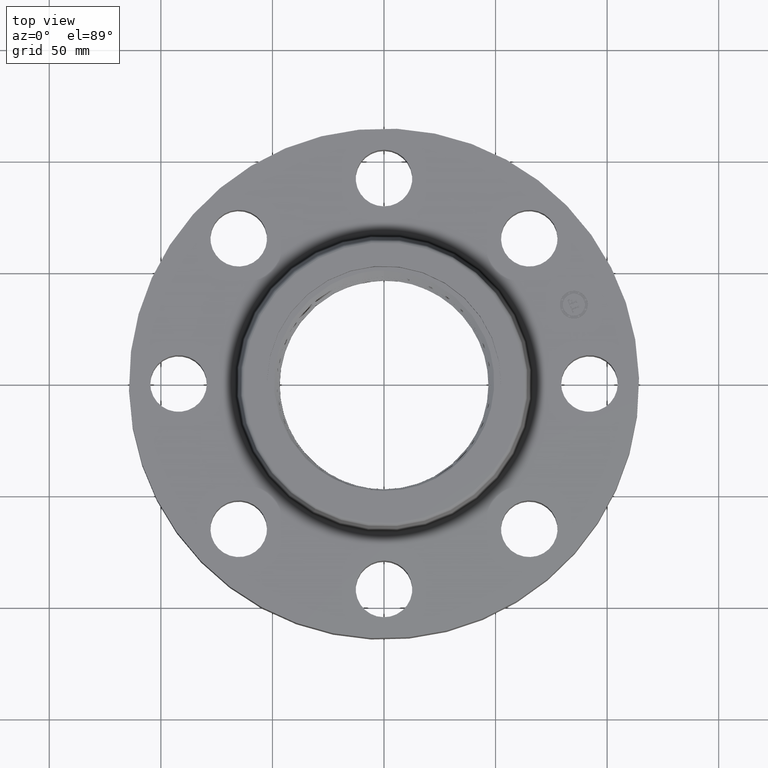
[diagram: clean part render]
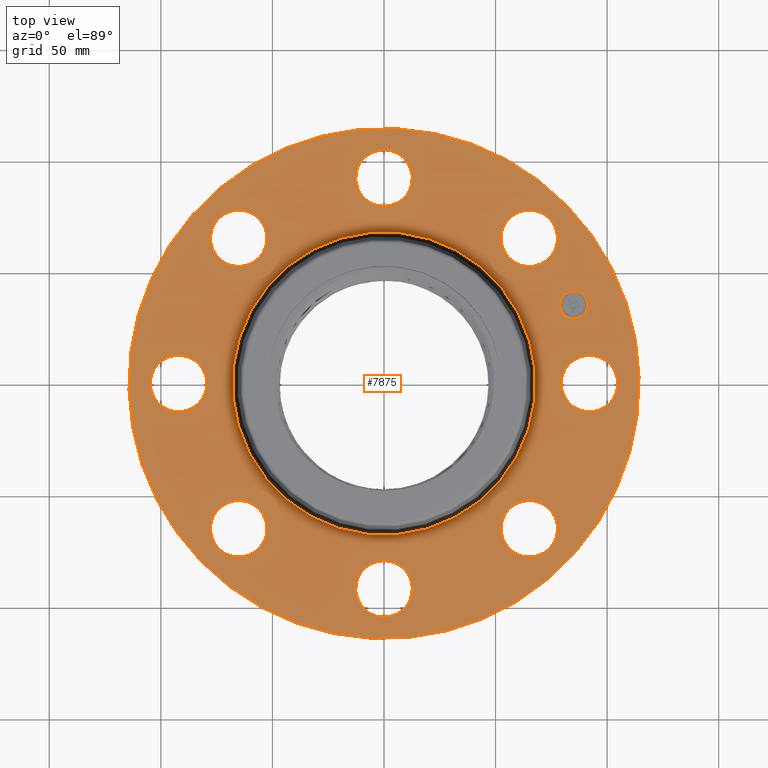
[diagram: same view with one face highlighted and labeled with its STEP entity id]
A machine part, top view. The second image highlights one B-rep face of the part: STEP entity #7875.
In plain terms, the highlighted planar face has unit normal (0, 0, -1).
Its self-contained STEP definition (entity closure, byte-faithful):
#401=AXIS2_PLACEMENT_3D('Circle Axis2P3D',#399,#400,$) ;
#418=AXIS2_PLACEMENT_3D('Circle Axis2P3D',#416,#417,$) ;
#451=AXIS2_PLACEMENT_3D('Circle Axis2P3D',#449,#450,$) ;
#475=AXIS2_PLACEMENT_3D('Circle Axis2P3D',#473,#474,$) ;
#492=AXIS2_PLACEMENT_3D('Circle Axis2P3D',#490,#491,$) ;
#527=AXIS2_PLACEMENT_3D('Circle Axis2P3D',#525,#526,$) ;
#836=AXIS2_PLACEMENT_3D('Circle Axis2P3D',#834,#835,$) ;
#848=AXIS2_PLACEMENT_3D('Circle Axis2P3D',#846,#847,$) ;
#879=AXIS2_PLACEMENT_3D('Circle Axis2P3D',#877,#878,$) ;
#891=AXIS2_PLACEMENT_3D('Circle Axis2P3D',#889,#890,$) ;
#922=AXIS2_PLACEMENT_3D('Circle Axis2P3D',#920,#921,$) ;
#934=AXIS2_PLACEMENT_3D('Circle Axis2P3D',#932,#933,$) ;
#965=AXIS2_PLACEMENT_3D('Circle Axis2P3D',#963,#964,$) ;
#977=AXIS2_PLACEMENT_3D('Circle Axis2P3D',#975,#976,$) ;
#1008=AXIS2_PLACEMENT_3D('Circle Axis2P3D',#1006,#1007,$) ;
#1020=AXIS2_PLACEMENT_3D('Circle Axis2P3D',#1018,#1019,$) ;
#1051=AXIS2_PLACEMENT_3D('Circle Axis2P3D',#1049,#1050,$) ;
#1063=AXIS2_PLACEMENT_3D('Circle Axis2P3D',#1061,#1062,$) ;
#1094=AXIS2_PLACEMENT_3D('Circle Axis2P3D',#1092,#1093,$) ;
#1106=AXIS2_PLACEMENT_3D('Circle Axis2P3D',#1104,#1105,$) ;
#7815=AXIS2_PLACEMENT_3D('Plane Axis2P3D',#7812,#7813,#7814) ;
#7859=AXIS2_PLACEMENT_3D('Circle Axis2P3D',#7857,#7858,$) ;
#7868=AXIS2_PLACEMENT_3D('Circle Axis2P3D',#7866,#7867,$) ;
#382=CARTESIAN_POINT('Vertex',(3.18620871907,0.239712769303,1.38000000001)) ;
#396=CARTESIAN_POINT('Vertex',(4.06379128096,-0.239712769303,1.38000000001)) ;
#399=CARTESIAN_POINT('Axis2P3D Location',(3.62500000001,0.,1.38000000001)) ;
#416=CARTESIAN_POINT('Axis2P3D Location',(3.62500000001,0.,1.38000000001)) ;
#446=CARTESIAN_POINT('Vertex',(-2.15741492373,-3.94912152852,1.38000000001)) ;
#449=CARTESIAN_POINT('Axis2P3D Location',(0.,0.,1.38000000001)) ;
#453=CARTESIAN_POINT('Vertex',(2.15741492373,3.94912152852,1.38000000001)) ;
#473=CARTESIAN_POINT('Axis2P3D Location',(0.,0.,1.38000000001)) ;
#490=CARTESIAN_POINT('Axis2P3D Location',(0.,0.,1.38000000001)) ;
#494=CARTESIAN_POINT('Vertex',(1.2826291864,2.34783697721,1.38000000001)) ;
#496=CARTESIAN_POINT('Vertex',(-1.2826291864,-2.34783697721,1.38000000001)) ;
#525=CARTESIAN_POINT('Axis2P3D Location',(0.,0.,1.38000000001)) ;
#824=CARTESIAN_POINT('Vertex',(-2.42249231624,2.08348726682,1.38000000001)) ;
#831=CARTESIAN_POINT('Vertex',(-2.70403184738,3.04303689681,1.38000000001)) ;
#834=CARTESIAN_POINT('Axis2P3D Location',(-2.56326208181,2.56326208181,1.38000000001)) ;
#846=CARTESIAN_POINT('Axis2P3D Location',(-2.56326208181,2.56326208181,1.38000000001)) ;
#867=CARTESIAN_POINT('Vertex',(0.239712769303,-3.18620871907,1.38000000001)) ;
#874=CARTESIAN_POINT('Vertex',(-0.239712769303,-4.06379128096,1.38000000001)) ;
#877=CARTESIAN_POINT('Axis2P3D Location',(-3.37515236756E-016,-3.62500000001,1.38000000001)) ;
#889=CARTESIAN_POINT('Axis2P3D Location',(-3.37515236756E-016,-3.62500000001,1.38000000001)) ;
#910=CARTESIAN_POINT('Vertex',(-0.239712769303,3.18620871907,1.38000000001)) ;
#917=CARTESIAN_POINT('Vertex',(0.239712769303,4.06379128096,1.38000000001)) ;
#920=CARTESIAN_POINT('Axis2P3D Location',(-6.65901697039E-016,3.62500000001,1.38000000001)) ;
#932=CARTESIAN_POINT('Axis2P3D Location',(-6.65901697039E-016,3.62500000001,1.38000000001)) ;
#953=CARTESIAN_POINT('Vertex',(-2.08348726682,-2.42249231624,1.38000000001)) ;
#960=CARTESIAN_POINT('Vertex',(-3.04303689681,-2.70403184738,1.38000000001)) ;
#963=CARTESIAN_POINT('Axis2P3D Location',(-2.56326208181,-2.56326208181,1.38000000001)) ;
#975=CARTESIAN_POINT('Axis2P3D Location',(-2.56326208181,-2.56326208181,1.38000000001)) ;
#996=CARTESIAN_POINT('Vertex',(2.08348726682,2.42249231624,1.38000000001)) ;
#1003=CARTESIAN_POINT('Vertex',(3.04303689681,2.70403184738,1.38000000001)) ;
#1006=CARTESIAN_POINT('Axis2P3D Location',(2.56326208181,2.56326208181,1.38000000001)) ;
#1018=CARTESIAN_POINT('Axis2P3D Location',(2.56326208181,2.56326208181,1.38000000001)) ;
#1039=CARTESIAN_POINT('Vertex',(-3.18620871907,-0.239712769303,1.38000000001)) ;
#1046=CARTESIAN_POINT('Vertex',(-4.06379128096,0.239712769303,1.38000000001)) ;
#1049=CARTESIAN_POINT('Axis2P3D Location',(-3.62500000001,-4.43934464693E-016,1.38000000001)) ;
#1061=CARTESIAN_POINT('Axis2P3D Location',(-3.62500000001,-4.43934464693E-016,1.38000000001)) ;
#1082=CARTESIAN_POINT('Vertex',(2.42249231624,-2.08348726682,1.38000000001)) ;
#1089=CARTESIAN_POINT('Vertex',(2.70403184738,-3.04303689681,1.38000000001)) ;
#1092=CARTESIAN_POINT('Axis2P3D Location',(2.56326208181,-2.56326208181,1.38000000001)) ;
#1104=CARTESIAN_POINT('Axis2P3D Location',(2.56326208181,-2.56326208181,1.38000000001)) ;
#7812=CARTESIAN_POINT('Axis2P3D Location',(0.,4.50000000002,1.38000000001)) ;
#7857=CARTESIAN_POINT('Axis2P3D Location',(3.34906330537,1.38722744233,1.38000000001)) ;
#7861=CARTESIAN_POINT('Vertex',(3.25434915586,1.61588762663,1.38000000001)) ;
#7863=CARTESIAN_POINT('Vertex',(3.44377745488,1.15856725803,1.38000000001)) ;
#7866=CARTESIAN_POINT('Axis2P3D Location',(3.34906330537,1.38722744233,1.38000000001)) ;
#400=DIRECTION('Axis2P3D Direction',(0.,-0.,-0.0393700787402)) ;
#417=DIRECTION('Axis2P3D Direction',(0.,-0.,-0.0393700787402)) ;
#450=DIRECTION('Axis2P3D Direction',(0.,0.,-0.0393700787402)) ;
#474=DIRECTION('Axis2P3D Direction',(0.,0.,-0.0393700787402)) ;
#491=DIRECTION('Axis2P3D Direction',(0.,0.,-0.0393700787402)) ;
#526=DIRECTION('Axis2P3D Direction',(0.,0.,-0.0393700787402)) ;
#835=DIRECTION('Axis2P3D Direction',(0.,0.,-0.0393700787402)) ;
#847=DIRECTION('Axis2P3D Direction',(0.,0.,-0.0393700787402)) ;
#878=DIRECTION('Axis2P3D Direction',(0.,-0.,-0.0393700787402)) ;
#890=DIRECTION('Axis2P3D Direction',(0.,-0.,-0.0393700787402)) ;
#921=DIRECTION('Axis2P3D Direction',(0.,0.,-0.0393700787402)) ;
#933=DIRECTION('Axis2P3D Direction',(0.,0.,-0.0393700787402)) ;
#964=DIRECTION('Axis2P3D Direction',(-0.,0.,-0.0393700787402)) ;
#976=DIRECTION('Axis2P3D Direction',(-0.,0.,-0.0393700787402)) ;
#1007=DIRECTION('Axis2P3D Direction',(0.,0.,-0.0393700787402)) ;
#1019=DIRECTION('Axis2P3D Direction',(0.,0.,-0.0393700787402)) ;
#1050=DIRECTION('Axis2P3D Direction',(-0.,0.,-0.0393700787402)) ;
#1062=DIRECTION('Axis2P3D Direction',(-0.,0.,-0.0393700787402)) ;
#1093=DIRECTION('Axis2P3D Direction',(0.,-0.,-0.0393700787402)) ;
#1105=DIRECTION('Axis2P3D Direction',(0.,-0.,-0.0393700787402)) ;
#7813=DIRECTION('Axis2P3D Direction',(0.,0.,-0.0393700787402)) ;
#7814=DIRECTION('Axis2P3D XDirection',(0.0393700787402,0.,0.)) ;
#7858=DIRECTION('Axis2P3D Direction',(0.,0.,-0.0393700787402)) ;
#7867=DIRECTION('Axis2P3D Direction',(0.,0.,-0.0393700787402)) ;
#7818=ORIENTED_EDGE('',*,*,#477,.F.) ;
#7819=ORIENTED_EDGE('',*,*,#455,.F.) ;
#7822=ORIENTED_EDGE('',*,*,#403,.T.) ;
#7823=ORIENTED_EDGE('',*,*,#420,.T.) ;
#7826=ORIENTED_EDGE('',*,*,#529,.T.) ;
#7827=ORIENTED_EDGE('',*,*,#498,.T.) ;
#7830=ORIENTED_EDGE('',*,*,#1108,.T.) ;
#7831=ORIENTED_EDGE('',*,*,#1096,.T.) ;
#7834=ORIENTED_EDGE('',*,*,#893,.T.) ;
#7835=ORIENTED_EDGE('',*,*,#881,.T.) ;
#7838=ORIENTED_EDGE('',*,*,#979,.T.) ;
#7839=ORIENTED_EDGE('',*,*,#967,.T.) ;
#7842=ORIENTED_EDGE('',*,*,#1065,.T.) ;
#7843=ORIENTED_EDGE('',*,*,#1053,.T.) ;
#7846=ORIENTED_EDGE('',*,*,#850,.T.) ;
#7847=ORIENTED_EDGE('',*,*,#838,.T.) ;
#7850=ORIENTED_EDGE('',*,*,#936,.T.) ;
#7851=ORIENTED_EDGE('',*,*,#924,.T.) ;
#7854=ORIENTED_EDGE('',*,*,#1022,.T.) ;
#7855=ORIENTED_EDGE('',*,*,#1010,.T.) ;
#7872=ORIENTED_EDGE('',*,*,#7865,.T.) ;
#7873=ORIENTED_EDGE('',*,*,#7870,.T.) ;
#7824=FACE_BOUND('',#7821,.T.) ;
#7828=FACE_BOUND('',#7825,.T.) ;
#7832=FACE_BOUND('',#7829,.T.) ;
#7836=FACE_BOUND('',#7833,.T.) ;
#7840=FACE_BOUND('',#7837,.T.) ;
#7844=FACE_BOUND('',#7841,.T.) ;
#7848=FACE_BOUND('',#7845,.T.) ;
#7852=FACE_BOUND('',#7849,.T.) ;
#7856=FACE_BOUND('',#7853,.T.) ;
#7874=FACE_BOUND('',#7871,.T.) ;
#7875=ADVANCED_FACE('PartBody',(#7820,#7824,#7828,#7832,#7836,#7840,#7844,#7848,#7852,#7856,#7874),#7816,.F.) ;
#402=CIRCLE('generated circle',#401,0.500000000002) ;
#419=CIRCLE('generated circle',#418,0.500000000002) ;
#452=CIRCLE('generated circle',#451,4.50000000002) ;
#476=CIRCLE('generated circle',#475,4.50000000002) ;
#493=CIRCLE('generated circle',#492,2.67534597788) ;
#528=CIRCLE('generated circle',#527,2.67534597788) ;
#837=CIRCLE('generated circle',#836,0.500000000002) ;
#849=CIRCLE('generated circle',#848,0.500000000002) ;
#880=CIRCLE('generated circle',#879,0.500000000002) ;
#892=CIRCLE('generated circle',#891,0.500000000002) ;
#923=CIRCLE('generated circle',#922,0.500000000002) ;
#935=CIRCLE('generated circle',#934,0.500000000002) ;
#966=CIRCLE('generated circle',#965,0.500000000002) ;
#978=CIRCLE('generated circle',#977,0.500000000002) ;
#1009=CIRCLE('generated circle',#1008,0.500000000002) ;
#1021=CIRCLE('generated circle',#1020,0.500000000002) ;
#1052=CIRCLE('generated circle',#1051,0.500000000002) ;
#1064=CIRCLE('generated circle',#1063,0.500000000002) ;
#1095=CIRCLE('generated circle',#1094,0.500000000002) ;
#1107=CIRCLE('generated circle',#1106,0.500000000002) ;
#7860=CIRCLE('generated circle',#7859,0.247500000001) ;
#7869=CIRCLE('generated circle',#7868,0.247500000001) ;
#403=EDGE_CURVE('',#383,#397,#402,.T.) ;
#420=EDGE_CURVE('',#397,#383,#419,.T.) ;
#455=EDGE_CURVE('',#447,#454,#452,.T.) ;
#477=EDGE_CURVE('',#454,#447,#476,.T.) ;
#498=EDGE_CURVE('',#495,#497,#493,.T.) ;
#529=EDGE_CURVE('',#497,#495,#528,.T.) ;
#838=EDGE_CURVE('',#825,#832,#837,.T.) ;
#850=EDGE_CURVE('',#832,#825,#849,.T.) ;
#881=EDGE_CURVE('',#868,#875,#880,.T.) ;
#893=EDGE_CURVE('',#875,#868,#892,.T.) ;
#924=EDGE_CURVE('',#911,#918,#923,.T.) ;
#936=EDGE_CURVE('',#918,#911,#935,.T.) ;
#967=EDGE_CURVE('',#954,#961,#966,.T.) ;
#979=EDGE_CURVE('',#961,#954,#978,.T.) ;
#1010=EDGE_CURVE('',#997,#1004,#1009,.T.) ;
#1022=EDGE_CURVE('',#1004,#997,#1021,.T.) ;
#1053=EDGE_CURVE('',#1040,#1047,#1052,.T.) ;
#1065=EDGE_CURVE('',#1047,#1040,#1064,.T.) ;
#1096=EDGE_CURVE('',#1083,#1090,#1095,.T.) ;
#1108=EDGE_CURVE('',#1090,#1083,#1107,.T.) ;
#7865=EDGE_CURVE('',#7862,#7864,#7860,.T.) ;
#7870=EDGE_CURVE('',#7864,#7862,#7869,.T.) ;
#7817=EDGE_LOOP('',(#7818,#7819)) ;
#7821=EDGE_LOOP('',(#7822,#7823)) ;
#7825=EDGE_LOOP('',(#7826,#7827)) ;
#7829=EDGE_LOOP('',(#7830,#7831)) ;
#7833=EDGE_LOOP('',(#7834,#7835)) ;
#7837=EDGE_LOOP('',(#7838,#7839)) ;
#7841=EDGE_LOOP('',(#7842,#7843)) ;
#7845=EDGE_LOOP('',(#7846,#7847)) ;
#7849=EDGE_LOOP('',(#7850,#7851)) ;
#7853=EDGE_LOOP('',(#7854,#7855)) ;
#7871=EDGE_LOOP('',(#7872,#7873)) ;
#7820=FACE_OUTER_BOUND('',#7817,.T.) ;
#7816=PLANE('',#7815) ;
#383=VERTEX_POINT('',#382) ;
#397=VERTEX_POINT('',#396) ;
#447=VERTEX_POINT('',#446) ;
#454=VERTEX_POINT('',#453) ;
#495=VERTEX_POINT('',#494) ;
#497=VERTEX_POINT('',#496) ;
#825=VERTEX_POINT('',#824) ;
#832=VERTEX_POINT('',#831) ;
#868=VERTEX_POINT('',#867) ;
#875=VERTEX_POINT('',#874) ;
#911=VERTEX_POINT('',#910) ;
#918=VERTEX_POINT('',#917) ;
#954=VERTEX_POINT('',#953) ;
#961=VERTEX_POINT('',#960) ;
#997=VERTEX_POINT('',#996) ;
#1004=VERTEX_POINT('',#1003) ;
#1040=VERTEX_POINT('',#1039) ;
#1047=VERTEX_POINT('',#1046) ;
#1083=VERTEX_POINT('',#1082) ;
#1090=VERTEX_POINT('',#1089) ;
#7862=VERTEX_POINT('',#7861) ;
#7864=VERTEX_POINT('',#7863) ;